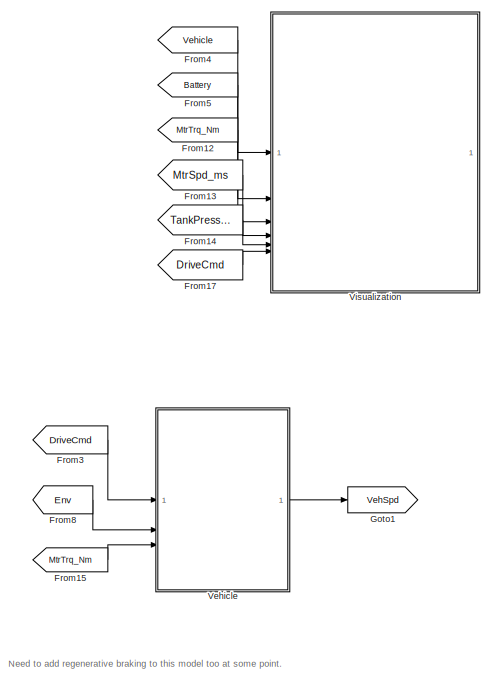
[diagram: root canvas - part 1/2, right side, full height]
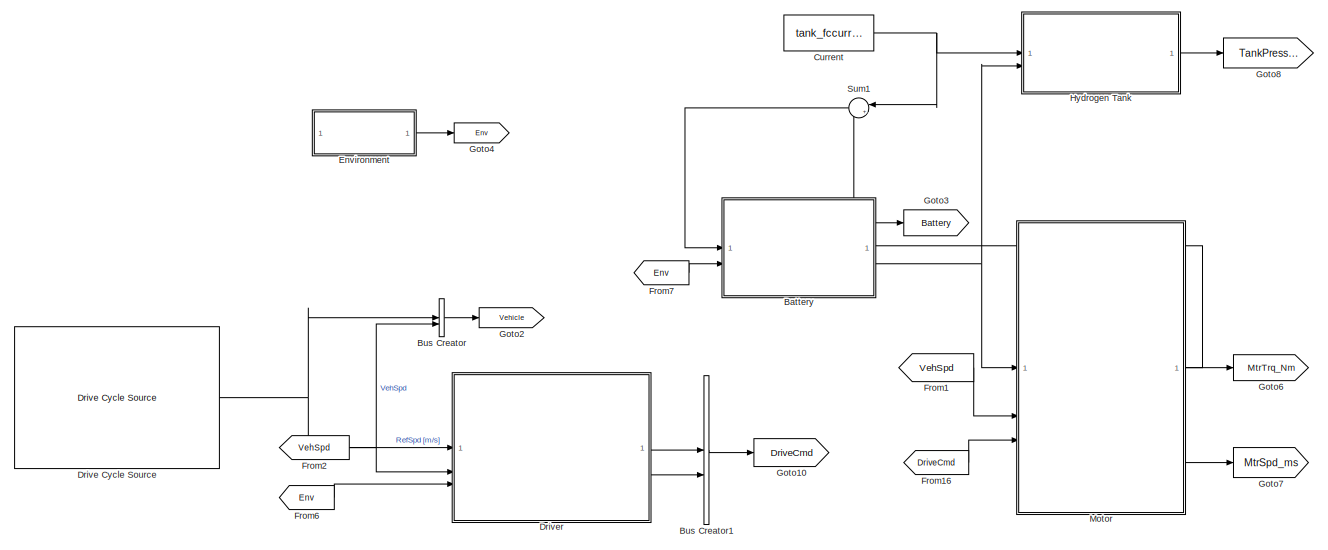
[diagram: root canvas - part 2/2, center side, full height]
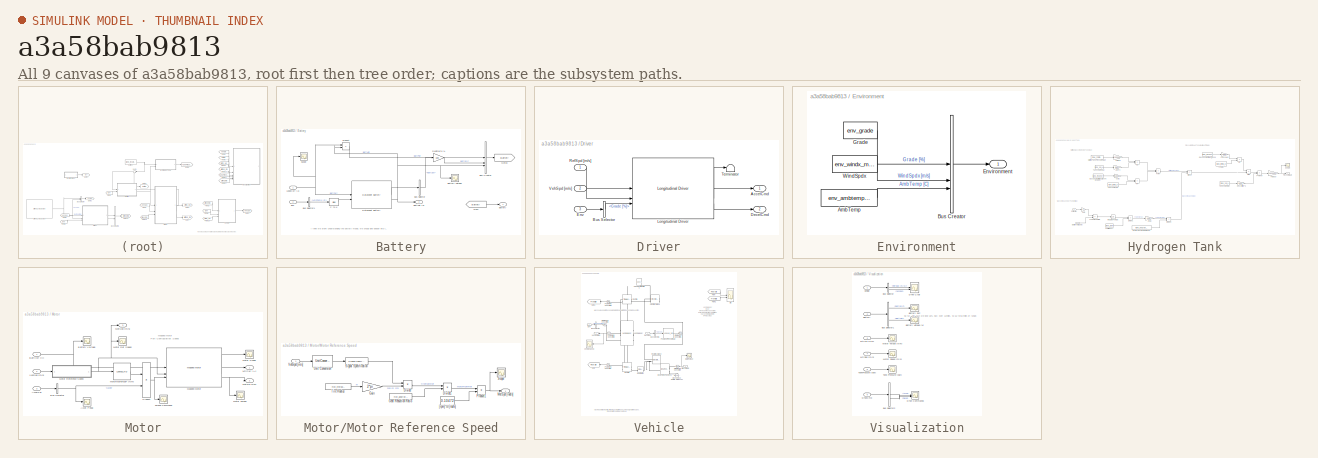
[diagram: thumbnail index - all 9 canvases of the model, root first then tree order]
MODEL slx_a3a58bab9813
KIND model
CONFIG AbsTol = auto
CONFIG EnableMultiTasking = off
CONFIG FixedStep = auto
CONFIG MaxStep = auto
CONFIG MinStep = auto
CONFIG RelTol = 1e-3
CONFIG SampleTimeConstraint = Unconstrained
CONFIG SolverName = VariableStepAuto
CONFIG StartTime = 0.0
CONFIG StopTime = 2474
WORKSPACE source: mxarray member
WORKSPACE N_P0 = 3
BLOCK [SubSystem] Battery
BLOCK [Outport] Battery/BattVolt [V]
  Port = 2
BLOCK [Outport] Battery/Battery
BLOCK [Scope] Battery/Battery Voltage
  Floating = off
  NumInputPorts = 1
  ScopeSpecificationString = Simulink.scopes.TimeScopeBlockCfg('CurrentConfiguration', extmgr.ConfigurationSet(extmgr.Configuration('Core','General UI',true),extmgr.Configuration('Core','Source UI',true),extmgr.Configuration('Sources','WiredSimulink',true,'DataLoggingVariableName','ScopeData10'),extmgr.Configuration('Visuals','Time Domain',true,'SerializedDisplays',{struct('MinYLimReal','42.42812','MaxYLimReal','51.67703','YL...<+1405ch>
BLOCK [BusCreator] Battery/Bus Creator
  DisplayOption = bar
  InheritFromInputs = on
  Inputs = 3
BLOCK [BusSelector] Battery/Bus Selector
  OutputSignals = BattSoc
BLOCK [BusSelector] Battery/Bus Selector1
  OutputSignals = AmbTemp [C]
BLOCK [Bias] Battery/C to K
  Bias = 273
  SaturateOnIntegerOverflow = off
BLOCK [Reference] Battery/Datasheet Battery  REF=autolibdatasheetbattery/Datasheet Battery
  SourceBlock = autolibdatasheetbattery/Datasheet Battery
  SourceType = Datasheet Battery
BLOCK [Gain] Battery/Decimal to %
  Gain = 100
BLOCK [Inport] Battery/Env
  Port = 2
BLOCK [From] Battery/From
  GotoTag = Battery
BLOCK [Goto] Battery/Goto3
  GotoTag = Battery
BLOCK [Inport] Battery/LoadCurr [A]
BLOCK [Product] Battery/Product
BLOCK [Scope] Battery/Scope
  Floating = off
  NumInputPorts = 1
  ScopeSpecificationString = Simulink.scopes.TimeScopeBlockCfg('CurrentConfiguration', extmgr.ConfigurationSet(extmgr.Configuration('Core','General UI',true),extmgr.Configuration('Core','Source UI',true),extmgr.Configuration('Sources','WiredSimulink',true,'DataLoggingVariableName','ScopeData2'),extmgr.Configuration('Visuals','Time Domain',true,'SerializedDisplays',{struct('MinYLimReal','-9.61679','MaxYLimReal','86.55107','YLa...<+1404ch>
BLOCK [BusCreator] Bus Creator
  DisplayOption = bar
  InheritFromInputs = on
  Inputs = 2
BLOCK [BusCreator] Bus Creator1
  DisplayOption = bar
  InheritFromInputs = on
  Inputs = 2
BLOCK [Constant] Current
  Value = tank_fccurr_A
BLOCK [Reference] Drive Cycle Source  REF=autolibshared/Drive Cycle Source
  AttributesFormatString = %<cycleVar> (%<tfinal>)
  LibrarySourceBlock = autolibscenario/Drive Cycle Source
  SourceBlock = autolibshared/Drive Cycle Source
  SourceType = Drive Cycle Source
BLOCK [SubSystem] Driver
BLOCK [Outport] Driver/AccelCmd
BLOCK [BusSelector] Driver/Bus Selector
  OutputSignals = Grade [%]
BLOCK [Outport] Driver/DecelCmd
  Port = 2
BLOCK [Inport] Driver/Env
  Port = 3
BLOCK [Reference] Driver/Longitudinal Driver  REF=autolibshared/Longitudinal Driver
  LibrarySourceBlock = autolibscenario/Longitudinal Driver
  SourceBlock = autolibshared/Longitudinal Driver
  SourceType = Longitudinal Driver
BLOCK [Inport] Driver/RefSpd [m//s]
BLOCK [Terminator] Driver/Terminator
BLOCK [Inport] Driver/VehSpd [m//s]
  Port = 2
BLOCK [SubSystem] Environment
BLOCK [Constant] Environment/AmbTemp
  Value = env_ambtemp_C
BLOCK [BusCreator] Environment/Bus Creator
  DisplayOption = bar
  InheritFromInputs = on
  Inputs = 3
BLOCK [Outport] Environment/Environment
BLOCK [Constant] Environment/Grade
  Value = env_grade
BLOCK [Constant] Environment/WindSpdx
  Value = env_windx_mps
BLOCK [From] From1
  GotoTag = VehSpd
BLOCK [From] From12
  GotoTag = MtrTrq_Nm
BLOCK [From] From13
  GotoTag = MtrSpd_ms
BLOCK [From] From14
  GotoTag = TankPressure
BLOCK [From] From15
  GotoTag = MtrTrq_Nm
BLOCK [From] From16
  GotoTag = DriveCmd
BLOCK [From] From17
  GotoTag = DriveCmd
BLOCK [From] From2
  GotoTag = VehSpd
BLOCK [From] From3
  GotoTag = DriveCmd
BLOCK [From] From4
  GotoTag = Vehicle
BLOCK [From] From5
  GotoTag = Battery
BLOCK [From] From6
  GotoTag = Env
BLOCK [From] From7
  GotoTag = Env
BLOCK [From] From8
  GotoTag = Env
BLOCK [Goto] Goto1
  GotoTag = VehSpd
BLOCK [Goto] Goto10
  GotoTag = DriveCmd
BLOCK [Goto] Goto2
  GotoTag = Vehicle
BLOCK [Goto] Goto3
  GotoTag = Battery
BLOCK [Goto] Goto4
  GotoTag = Env
BLOCK [Goto] Goto6
  GotoTag = MtrTrq_Nm
BLOCK [Goto] Goto7
  GotoTag = MtrSpd_ms
BLOCK [Goto] Goto8
  GotoTag = TankPressure
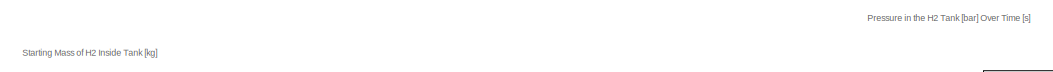
[diagram: Hydrogen Tank - part 1/3, top center region]
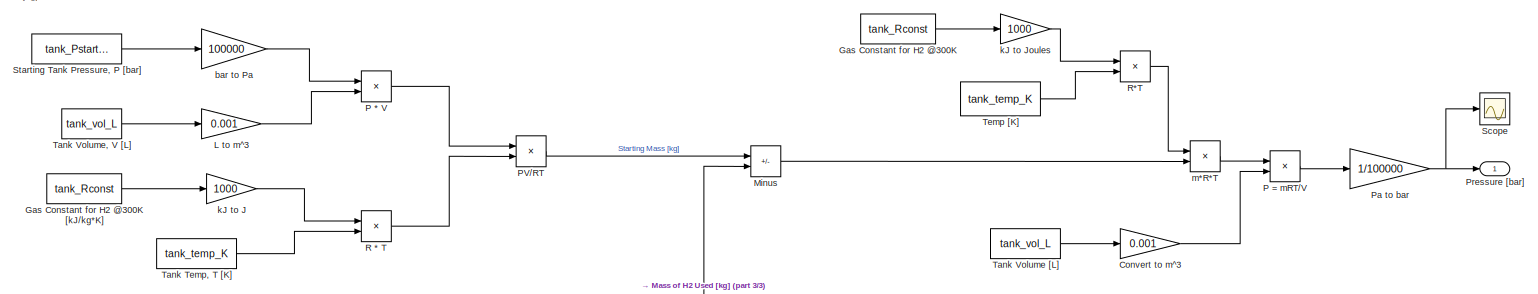
[diagram: Hydrogen Tank - part 2/3, full width, top band]
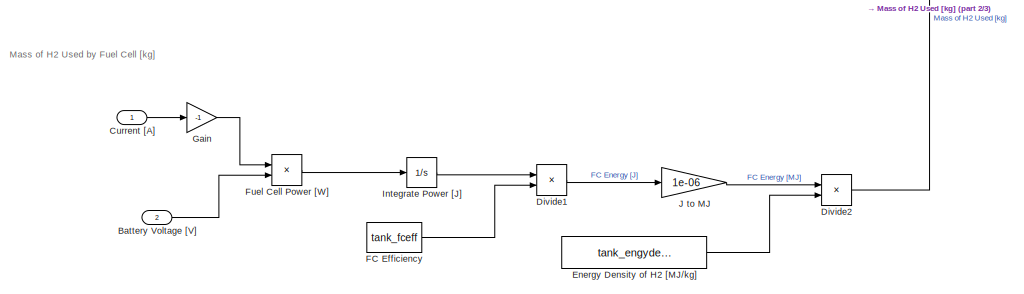
[diagram: Hydrogen Tank - part 3/3, bottom left region]
BLOCK [SubSystem] Hydrogen Tank
BLOCK [Inport] Hydrogen Tank/Battery Voltage [V]
  Port = 2
BLOCK [Gain] Hydrogen Tank/Convert to m^3
  Gain = 0.001
BLOCK [Inport] Hydrogen Tank/Current [A]
BLOCK [Product] Hydrogen Tank/Divide1
  Inputs = */
BLOCK [Product] Hydrogen Tank/Divide2
  Inputs = */
BLOCK [Constant] Hydrogen Tank/Energy Density of H2 [MJ//kg]
  Value = tank_engydensH2_MJpkg
BLOCK [Constant] Hydrogen Tank/FC Efficiency
  Value = tank_fceff
BLOCK [Product] Hydrogen Tank/Fuel Cell Power [W]
BLOCK [Gain] Hydrogen Tank/Gain
  Gain = -1
BLOCK [Constant] Hydrogen Tank/Gas Constant for H2 @300K
  Value = tank_Rconst
BLOCK [Constant] Hydrogen Tank/Gas Constant for H2 @300K [kJ//kg*K]
  Value = tank_Rconst
BLOCK [Integrator] Hydrogen Tank/Integrate Power [J]
BLOCK [Gain] Hydrogen Tank/J to MJ
  Gain = 1e-06
BLOCK [Gain] Hydrogen Tank/L to m^3
  Gain = 0.001
BLOCK [Sum] Hydrogen Tank/Minus
  IconShape = rectangular
  Inputs = +-
BLOCK [Product] Hydrogen Tank/P * V
BLOCK [Product] Hydrogen Tank/P = mRT//V
  Inputs = */
BLOCK [Product] Hydrogen Tank/PV//RT
  Inputs = */
BLOCK [Gain] Hydrogen Tank/Pa to bar
  Gain = 1/100000
BLOCK [Outport] Hydrogen Tank/Pressure [bar]
BLOCK [Product] Hydrogen Tank/R * T
BLOCK [Product] Hydrogen Tank/R*T
BLOCK [Scope] Hydrogen Tank/Scope
  Floating = off
  NumInputPorts = 1
  ScopeSpecificationString = Simulink.scopes.TimeScopeBlockCfg('CurrentConfiguration', extmgr.ConfigurationSet(extmgr.Configuration('Core','General UI',true),extmgr.Configuration('Core','Source UI',true),extmgr.Configuration('Sources','WiredSimulink',true,'DataLoggingVariableName','ScopeData1'),extmgr.Configuration('Visuals','Time Domain',true),extmgr.Configuration('Tools','Plot Navigation',true),extmgr.Configuration('Tools',...<+40ch>
BLOCK [Constant] Hydrogen Tank/Starting Tank Pressure, P [bar]
  Value = tank_Pstart_bar
BLOCK [Constant] Hydrogen Tank/Tank Temp, T [K]
  Value = tank_temp_K
BLOCK [Constant] Hydrogen Tank/Tank Volume [L]
  Value = tank_vol_L
BLOCK [Constant] Hydrogen Tank/Tank Volume, V [L]
  Value = tank_vol_L
BLOCK [Constant] Hydrogen Tank/Temp [K]
  Value = tank_temp_K
BLOCK [Gain] Hydrogen Tank/bar to Pa
  Gain = 100000
BLOCK [Gain] Hydrogen Tank/kJ to J
  Gain = 1000
BLOCK [Gain] Hydrogen Tank/kJ to Joules
  Gain = 1000
BLOCK [Product] Hydrogen Tank/m*R*T
BLOCK [SubSystem] Motor
BLOCK [Scope] Motor/Accel Pedal
  Floating = off
  NumInputPorts = 1
  ScopeSpecificationString = Simulink.scopes.TimeScopeBlockCfg('CurrentConfiguration', extmgr.ConfigurationSet(extmgr.Configuration('Core','General UI',true),extmgr.Configuration('Core','Source UI',true),extmgr.Configuration('Sources','WiredSimulink',true,'DataLoggingVariableName','ScopeData4'),extmgr.Configuration('Visuals','Time Domain',true,'SerializedDisplays',{struct('MinYLimReal','-0.07775','MaxYLimReal','0.69976','YLab...<+1367ch>
BLOCK [Inport] Motor/AccelPdl
  Port = 3
BLOCK [Inport] Motor/BattVolt [V]
BLOCK [Scope] Motor/Battery Voltage
  Floating = off
  NumInputPorts = 1
  ScopeSpecificationString = Simulink.scopes.TimeScopeBlockCfg('CurrentConfiguration', extmgr.ConfigurationSet(extmgr.Configuration('Core','General UI',true),extmgr.Configuration('Core','Source UI',true),extmgr.Configuration('Sources','WiredSimulink',true,'DataLoggingVariableName','ScopeData3'),extmgr.Configuration('Visuals','Time Domain',true,'SerializedDisplays',{struct('MinYLimReal','42.42812','MaxYLimReal','51.67703','YLa...<+1377ch>
BLOCK [BusSelector] Motor/Bus Selector
  OutputSignals = Accel
BLOCK [Reference] Motor/Mapped Motor  REF=autolibmappedmotor/Mapped Motor
  LibrarySourceBlock = autolibemachines/Mapped Motor
  SourceBlock = autolibmappedmotor/Mapped Motor
  SourceType = MappedMotor
BLOCK [Outport] Motor/MotSpd [m//s]
  Port = 3
BLOCK [Outport] Motor/MotTrq [Nm]
  Port = 2
BLOCK [Scope] Motor/Motor Ref Speed
  Floating = off
  NumInputPorts = 1
  ScopeSpecificationString = Simulink.scopes.TimeScopeBlockCfg('CurrentConfiguration', extmgr.ConfigurationSet(extmgr.Configuration('Core','General UI',true),extmgr.Configuration('Core','Source UI',true),extmgr.Configuration('Sources','WiredSimulink',true,'DataLoggingVariableName','ScopeData6'),extmgr.Configuration('Visuals','Time Domain',true,'SerializedDisplays',{struct('MinYLimReal','-3.20565','MaxYLimReal','28.85085','YLa...<+1417ch>
BLOCK [SubSystem] Motor/Motor Reference Speed
BLOCK [Product] Motor/Motor Reference Speed/Divide
  Inputs = */
BLOCK [Product] Motor/Motor Reference Speed/Divide1
  Inputs = */
BLOCK [Gain] Motor/Motor Reference Speed/Gain
  Gain = 2*pi
BLOCK [Constant] Motor/Motor Reference Speed/Gear Reduction Ratio
  Value = mot_gearratio
BLOCK [Outport] Motor/Motor Reference Speed/MotSpd [rad//s]
BLOCK [Product] Motor/Motor Reference Speed/Product1
BLOCK [Scope] Motor/Motor Reference Speed/Scope
  Floating = off
  NumInputPorts = 1
  ScopeSpecificationString = Simulink.scopes.TimeScopeBlockCfg('CurrentConfiguration', extmgr.ConfigurationSet(extmgr.Configuration('Core','General UI',true),extmgr.Configuration('Core','Source UI',true),extmgr.Configuration('Sources','WiredSimulink',true,'DataLoggingVariableName','ScopeData13'),extmgr.Configuration('Visuals','Time Domain',true,'SerializedDisplays',{struct('MinYLimReal','-3.15612','MaxYLimReal','28.40508','YL...<+1372ch>
BLOCK [SignalSpecification] Motor/Motor Reference Speed/Signal Specification
  Unit = m/min
BLOCK [Constant] Motor/Motor Reference Speed/Tire Radius
  Value = mot_tirerad_m
BLOCK [UnitConversion] Motor/Motor Reference Speed/Unit Conversion
BLOCK [Inport] Motor/Motor Reference Speed/VehSpd [m//s]
BLOCK [Constant] Motor/Motor Reference Speed/[rpm] to [rad//s]
  Value = 0.10472
BLOCK [Scope] Motor/Motor Scope
  Floating = off
  NumInputPorts = 1
  ScopeSpecificationString = Simulink.scopes.TimeScopeBlockCfg('CurrentConfiguration', extmgr.ConfigurationSet(extmgr.Configuration('Core','General UI',true),extmgr.Configuration('Core','Source UI',true),extmgr.Configuration('Sources','WiredSimulink',true,'DataLoggingVariableName','ScopeData1'),extmgr.Configuration('Visuals','Time Domain',true,'SerializedDisplays',{struct('MinYLimReal','-1778.25698','MaxYLimReal','2013.69503'...<+1455ch>
BLOCK [Scope] Motor/Motor Torque
  Floating = off
  NumInputPorts = 1
  ScopeSpecificationString = Simulink.scopes.TimeScopeBlockCfg('CurrentConfiguration', extmgr.ConfigurationSet(extmgr.Configuration('Core','General UI',true),extmgr.Configuration('Core','Source UI',true),extmgr.Configuration('Sources','WiredSimulink',true,'DataLoggingVariableName','ScopeData8'),extmgr.Configuration('Visuals','Time Domain',true,'SerializedDisplays',{struct('MinYLimReal','-6.59749','MaxYLimReal','59.37697','YLa...<+1446ch>
BLOCK [Lookup_n-D] Motor/MotorMaxTorque* [Nm]
  BreakpointsForDimension1 = mot_rotspd_radps
  InputPortMap = u0
  InternalRulePriority = Speed
  NumberOfTableDimensions = 1
  RndMeth = Simplest
  Table = mot_maxtrq_Nm
BLOCK [Outport] Motor/MtrCurr [A]
BLOCK [Product] Motor/Product
BLOCK [Scope] Motor/Torque Command
  Floating = off
  NumInputPorts = 1
  ScopeSpecificationString = Simulink.scopes.TimeScopeBlockCfg('CurrentConfiguration', extmgr.ConfigurationSet(extmgr.Configuration('Core','General UI',true),extmgr.Configuration('Core','Source UI',true),extmgr.Configuration('Sources','WiredSimulink',true,'DataLoggingVariableName','ScopeData5'),extmgr.Configuration('Visuals','Time Domain',true,'SerializedDisplays',{struct('MinYLimReal','-5.20212','MaxYLimReal','46.8191','YLab...<+1366ch>
BLOCK [Inport] Motor/VehSpd [m//s]
  Port = 2
BLOCK [Sum] Sum1
  Inputs = |++
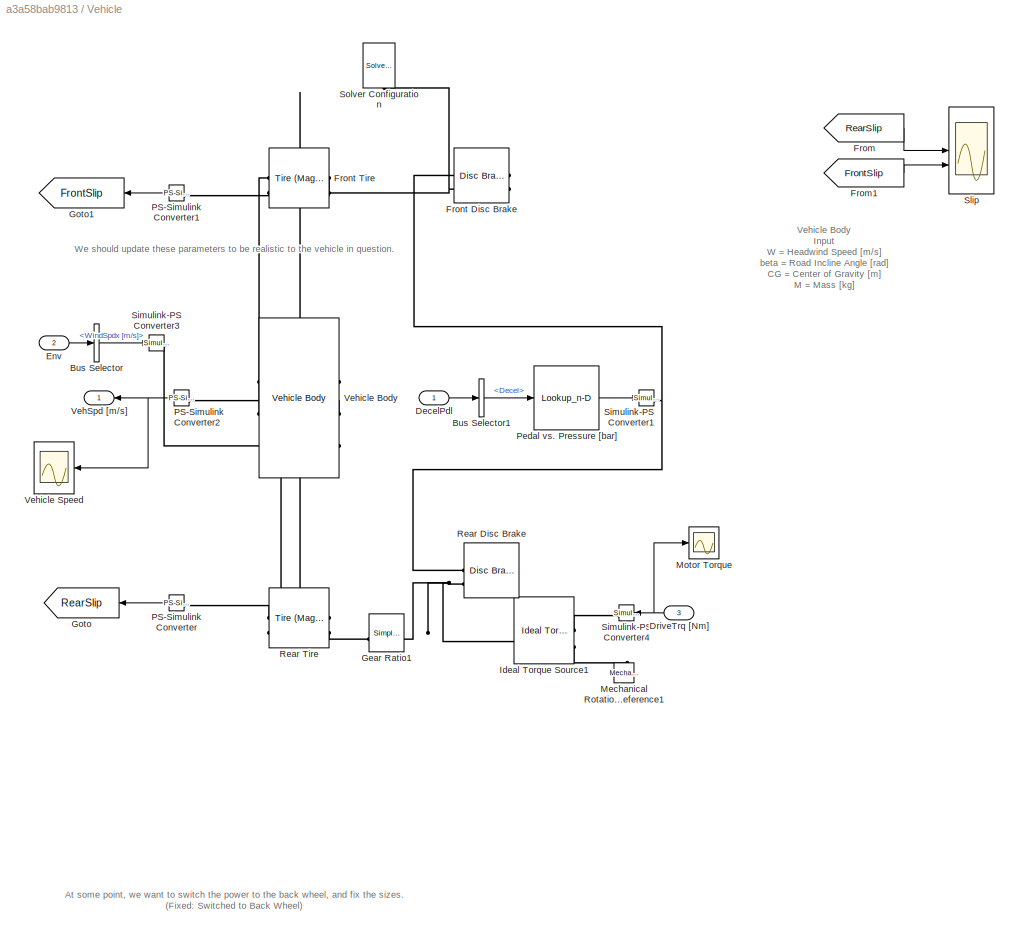
BLOCK [SubSystem] Vehicle
BLOCK [BusSelector] Vehicle/Bus Selector
  OutputSignals = WindSpdx [m/s]
BLOCK [BusSelector] Vehicle/Bus Selector1
  OutputSignals = Decel
BLOCK [Inport] Vehicle/DecelPdl
BLOCK [Inport] Vehicle/DriveTrq [Nm]
  Port = 3
BLOCK [Inport] Vehicle/Env
  Port = 2
BLOCK [From] Vehicle/From
  GotoTag = RearSlip
BLOCK [From] Vehicle/From1
  GotoTag = FrontSlip
BLOCK [Reference] Vehicle/Front Disc Brake  REF=sdl_lib/Brakes & Detents/Rotational/Disc Brake
  SourceBlock = sdl_lib/Brakes & Detents/Rotational/Disc Brake
  SourceType = Disc Brake
BLOCK [Reference] Vehicle/Front Tire  REF=sdl_lib/Tires & Vehicles/Tire (Magic Formula)
  NameLocation = top
  SourceBlock = sdl_lib/Tires & Vehicles/Tire (Magic Formula)
  SourceType = Tire (Magic Formula)
BLOCK [Reference] Vehicle/Gear Ratio1  REF=sdl_lib/Gears/Simple Gear
  SourceBlock = sdl_lib/Gears/Simple Gear
  SourceType = Simple Gear
BLOCK [Goto] Vehicle/Goto
  GotoTag = RearSlip
BLOCK [Goto] Vehicle/Goto1
  GotoTag = FrontSlip
BLOCK [Reference] Vehicle/Ideal Torque Source1  REF=fl_lib/Mechanical/Mechanical Sources/Ideal Torque Source
  SourceBlock = fl_lib/Mechanical/Mechanical Sources/Ideal Torque Source
  SourceType = Ideal Torque Source
BLOCK [Reference] Vehicle/Mechanical Rotational Reference1  REF=fl_lib/Mechanical/Rotational Elements/Mechanical
Rotational Reference
  NameLocation = right
  SourceBlock = fl_lib/Mechanical/Rotational Elements/Mechanical\nRotational Reference
  SourceType = Mechanical\nRotational Reference
BLOCK [Scope] Vehicle/Motor Torque
  Floating = off
  NumInputPorts = 1
  ScopeSpecificationString = Simulink.scopes.TimeScopeBlockCfg('CurrentConfiguration', extmgr.ConfigurationSet(extmgr.Configuration('Core','General UI',true),extmgr.Configuration('Core','Source UI',true),extmgr.Configuration('Sources','WiredSimulink',true,'DataLoggingVariableName','ScopeData1'),extmgr.Configuration('Visuals','Time Domain',true,'SerializedDisplays',{struct('MinYLimReal','-59.34355','MaxYLimReal','534.05016','Y...<+1377ch>
BLOCK [Reference] Vehicle/PS-Simulink Converter  REF=nesl_utility/PS-Simulink
Converter
  SourceBlock = nesl_utility/PS-Simulink\nConverter
  SourceType = PS-Simulink\nConverter
BLOCK [Reference] Vehicle/PS-Simulink Converter1  REF=nesl_utility/PS-Simulink
Converter
  SourceBlock = nesl_utility/PS-Simulink\nConverter
  SourceType = PS-Simulink\nConverter
BLOCK [Reference] Vehicle/PS-Simulink Converter2  REF=nesl_utility/PS-Simulink
Converter
  SourceBlock = nesl_utility/PS-Simulink\nConverter
  SourceType = PS-Simulink\nConverter
BLOCK [Lookup_n-D] Vehicle/Pedal vs. Pressure [bar]
  BreakpointsForDimension1 = [-5:5]
  InputPortMap = u0
  InternalRulePriority = Speed
  NumberOfTableDimensions = 1
  RndMeth = Simplest
  Table = tanh([-5:5])
BLOCK [Reference] Vehicle/Rear Disc Brake  REF=sdl_lib/Brakes & Detents/Rotational/Disc Brake
  NameLocation = top
  SourceBlock = sdl_lib/Brakes & Detents/Rotational/Disc Brake
  SourceType = Disc Brake
BLOCK [Reference] Vehicle/Rear Tire  REF=sdl_lib/Tires & Vehicles/Tire (Magic Formula)
  SourceBlock = sdl_lib/Tires & Vehicles/Tire (Magic Formula)
  SourceType = Tire (Magic Formula)
BLOCK [Reference] Vehicle/Simulink-PS Converter1  REF=nesl_utility/Simulink-PS
Converter
  SourceBlock = nesl_utility/Simulink-PS\nConverter
  SourceType = Simulink-PS\nConverter
BLOCK [Reference] Vehicle/Simulink-PS Converter3  REF=nesl_utility/Simulink-PS
Converter
  SourceBlock = nesl_utility/Simulink-PS\nConverter
  SourceType = Simulink-PS\nConverter
BLOCK [Reference] Vehicle/Simulink-PS Converter4  REF=nesl_utility/Simulink-PS
Converter
  SourceBlock = nesl_utility/Simulink-PS\nConverter
  SourceType = Simulink-PS\nConverter
BLOCK [Scope] Vehicle/Slip
  Floating = off
  NumInputPorts = 2
  ScopeSpecificationString = Simulink.scopes.TimeScopeBlockCfg('CurrentConfiguration', extmgr.ConfigurationSet(extmgr.Configuration('Core','General UI',true),extmgr.Configuration('Core','Source UI',true),extmgr.Configuration('Sources','WiredSimulink',true,'DataLoggingVariableName','ScopeData1'),extmgr.Configuration('Visuals','Time Domain',true,'SerializedDisplays',{struct('MinYLimReal','-0.00488','MaxYLimReal','0.01789','YLab...<+1432ch>
BLOCK [Reference] Vehicle/Solver Configuration  REF=nesl_utility/Solver
Configuration
  NameLocation = left
  SourceBlock = nesl_utility/Solver\nConfiguration
  SourceType = Solver\nConfiguration
BLOCK [Outport] Vehicle/VehSpd [m//s]
BLOCK [Reference] Vehicle/Vehicle Body  REF=sdl_lib/Tires & Vehicles/Vehicle Body
  SourceBlock = sdl_lib/Tires & Vehicles/Vehicle Body
  SourceType = Vehicle Body
BLOCK [Scope] Vehicle/Vehicle Speed
  Floating = off
  NumInputPorts = 1
  ScopeSpecificationString = Simulink.scopes.TimeScopeBlockCfg('CurrentConfiguration', extmgr.ConfigurationSet(extmgr.Configuration('Core','General UI',true),extmgr.Configuration('Core','Source UI',true),extmgr.Configuration('Sources','WiredSimulink',true,'DataLoggingVariableName','ScopeData7'),extmgr.Configuration('Visuals','Time Domain',true,'SerializedDisplays',{struct('MinYLimReal','-3.13988','MaxYLimReal','28.25896','YLa...<+1385ch>
BLOCK [SubSystem] Visualization
BLOCK [Inport] Visualization/Battery
  Port = 2
BLOCK [Scope] Visualization/Battery SoC
  Floating = off
  NumInputPorts = 1
  ScopeSpecificationString = Simulink.scopes.TimeScopeBlockCfg('CurrentConfiguration', extmgr.ConfigurationSet(extmgr.Configuration('Core','General UI',true),extmgr.Configuration('Core','Source UI',true),extmgr.Configuration('Sources','WiredSimulink',true,'DataLoggingVariableName','ScopeData2'),extmgr.Configuration('Visuals','Time Domain',true,'SerializedDisplays',{struct('MinYLimReal','99.67001','MaxYLimReal','100.03667','YL...<+1449ch>
BLOCK [Scope] Visualization/Battery Voltage [V]
  Floating = off
  NumInputPorts = 1
  ScopeSpecificationString = Simulink.scopes.TimeScopeBlockCfg('CurrentConfiguration', extmgr.ConfigurationSet(extmgr.Configuration('Core','General UI',true),extmgr.Configuration('Core','Source UI',true),extmgr.Configuration('Sources','WiredSimulink',true,'DataLoggingVariableName','ScopeData4'),extmgr.Configuration('Visuals','Time Domain',true,'SerializedDisplays',{struct('MinYLimReal','46.98372','MaxYLimReal','51.17961','YLa...<+1408ch>
BLOCK [BusSelector] Visualization/Bus Selector
  OutputSignals = RefSpd [m/s],VehSpd
BLOCK [BusSelector] Visualization/Bus Selector1
  OutputSignals = BattSOC,BattVolt
BLOCK [BusSelector] Visualization/Bus Selector2
  OutputSignals = Accel,Decel
BLOCK [Scope] Visualization/Drive Commands
  Floating = off
  NumInputPorts = 2
  ScopeSpecificationString = Simulink.scopes.TimeScopeBlockCfg('CurrentConfiguration', extmgr.ConfigurationSet(extmgr.Configuration('Core','General UI',true),extmgr.Configuration('Core','Source UI',true),extmgr.Configuration('Sources','WiredSimulink',true,'DataLoggingVariableName','ScopeData3'),extmgr.Configuration('Visuals','Time Domain',true,'SerializedDisplays',{struct('MinYLimReal','-0.125','MaxYLimReal','1.125','YLabelRe...<+1362ch>
BLOCK [Scope] Visualization/Drive Cycle
  Floating = off
  NumInputPorts = 2
  ScopeSpecificationString = Simulink.scopes.TimeScopeBlockCfg('CurrentConfiguration', extmgr.ConfigurationSet(extmgr.Configuration('Core','General UI',true),extmgr.Configuration('Core','Source UI',true),extmgr.Configuration('Sources','WiredSimulink',true),extmgr.Configuration('Visuals','Time Domain',true,'SerializedDisplays',{struct('MinYLimReal','-3.18','MaxYLimReal','28.61998','YLabelReal','','MinYLimMag','0.00000','MaxYLi...<+1370ch>
BLOCK [Inport] Visualization/DriveCmd
  Port = 6
BLOCK [Scope] Visualization/Motor Speed [m//s]
  Floating = off
  NumInputPorts = 1
  ScopeSpecificationString = Simulink.scopes.TimeScopeBlockCfg('CurrentConfiguration', extmgr.ConfigurationSet(extmgr.Configuration('Core','General UI',true),extmgr.Configuration('Core','Source UI',true),extmgr.Configuration('Sources','WiredSimulink',true,'DataLoggingVariableName','ScopeData2'),extmgr.Configuration('Visuals','Time Domain',true),extmgr.Configuration('Tools','Plot Navigation',true),extmgr.Configuration('Tools',...<+40ch>
BLOCK [Scope] Visualization/Motor Torque [Nm]
  Floating = off
  NumInputPorts = 1
  ScopeSpecificationString = Simulink.scopes.TimeScopeBlockCfg('CurrentConfiguration', extmgr.ConfigurationSet(extmgr.Configuration('Core','General UI',true),extmgr.Configuration('Core','Source UI',true),extmgr.Configuration('Sources','WiredSimulink',true,'DataLoggingVariableName','ScopeData1'),extmgr.Configuration('Visuals','Time Domain',true),extmgr.Configuration('Tools','Plot Navigation',true),extmgr.Configuration('Tools',...<+40ch>
BLOCK [Inport] Visualization/MtrSpd [m//s]
  Port = 4
BLOCK [Inport] Visualization/MtrTrq [Nm]
  Port = 3
BLOCK [Scope] Visualization/Tank Pressure [bar]
  Floating = off
  NumInputPorts = 1
  ScopeSpecificationString = Simulink.scopes.TimeScopeBlockCfg('CurrentConfiguration', extmgr.ConfigurationSet(extmgr.Configuration('Core','General UI',true),extmgr.Configuration('Core','Source UI',true),extmgr.Configuration('Sources','WiredSimulink',true,'DataLoggingVariableName','ScopeData2'),extmgr.Configuration('Visuals','Time Domain',true,'SerializedDisplays',{struct('MinYLimReal','274.88196','MaxYLimReal','358.34645','Y...<+1389ch>
BLOCK [Inport] Visualization/TankPressure [bar]
  Port = 5
BLOCK [Inport] Visualization/Vehicle
ANNOTATION (root): Need to add regenerative braking to this model too at some point.
ANNOTATION Battery: I think we aren't understanding the battery model, we should dive deeper into it and then come up with the correct 'tabulated values'
ANNOTATION Hydrogen Tank: Mass of H2 Used by Fuel Cell [kg]
ANNOTATION Hydrogen Tank: Pressure in the H2 Tank [bar] Over Time [s]
ANNOTATION Hydrogen Tank: Starting Mass of H2 Inside Tank [kg]
ANNOTATION Motor: Mapped Motor Port Configuration: Speed
ANNOTATION Vehicle: Vehicle Body Input W = Headwind Speed [m/s] beta = Road Incline Angle [rad] CG = Center of Gravity [m] M = Mass [kg] J = External Moment of Inertia [kg*m^2] Output V = Longitudinal Velocity [m/s] NF = Front Axle Normal Force [N] NR = Rear Axle Normal Force [N] H = Horizontal Motional Mechanical Translation Front Tire N = Normal Force [N] M = Magic Formula Coefficients S = Slip A = Axle H = Hub Mec...<+263ch>
ANNOTATION Vehicle: At some point, we want to switch the power to the back wheel, and fix the sizes. (Fixed: Switched to Back Wheel)
ANNOTATION Vehicle: We should update these parameters to be realistic to the vehicle in question.
ANNOTATION Visualization: So far, sim says we lose 18% SoC over 11miles, so 62 total miles of range.
LINE Battery/Bus Creator:1 -> Battery/Goto3:1
LINE Battery/Bus Selector1:1 -> Battery/C to K:1
LINE Battery/Bus Selector:1 -> Battery/Decimal to %:1
LINE Battery/C to K:1 -> Battery/Datasheet Battery:2
LINE Battery/Datasheet Battery:1 -> Battery/Bus Selector:1
NET Battery/Datasheet Battery:2 -> Battery/BattVolt [V]:1, Battery/Battery Voltage:1, Battery/Bus Creator:3, Battery/Product:2
LINE Battery/Decimal to %:1 -> Battery/Bus Creator:2
LINE Battery/Env:1 -> Battery/Bus Selector1:1
LINE Battery/From:1 -> Battery/Battery:1
NET Battery/LoadCurr [A]:1 -> Battery/Datasheet Battery:1, Battery/Product:1, Battery/Scope:1
LINE Battery/Product:1 -> Battery/Bus Creator:1
LINE Battery:1 -> Goto3:1
NET Battery:2 -> Hydrogen Tank:2, Motor:1
LINE Bus Creator1:1 -> Goto10:1
LINE Bus Creator:1 -> Goto2:1
NET Current:1 -> Hydrogen Tank:1, Sum1:1
NET Drive Cycle Source:1 -> Bus Creator:1, Driver:1
LINE Driver/Bus Selector:1 -> Driver/Longitudinal Driver:3
LINE Driver/Env:1 -> Driver/Bus Selector:1
LINE Driver/Longitudinal Driver:1 -> Driver/Terminator:1
LINE Driver/Longitudinal Driver:2 -> Driver/AccelCmd:1
LINE Driver/Longitudinal Driver:3 -> Driver/DecelCmd:1
LINE Driver/RefSpd [m//s]:1 -> Driver/Longitudinal Driver:1
LINE Driver/VehSpd [m//s]:1 -> Driver/Longitudinal Driver:2
LINE Driver:1 -> Bus Creator1:1
LINE Driver:2 -> Bus Creator1:2
LINE Environment/AmbTemp:1 -> Environment/Bus Creator:3
LINE Environment/Bus Creator:1 -> Environment/Environment:1
LINE Environment/Grade:1 -> Environment/Bus Creator:1
LINE Environment/WindSpdx:1 -> Environment/Bus Creator:2
LINE Environment:1 -> Goto4:1
LINE From12:1 -> Visualization:3
LINE From13:1 -> Visualization:4
LINE From14:1 -> Visualization:5
LINE From15:1 -> Vehicle:3
LINE From16:1 -> Motor:3
LINE From17:1 -> Visualization:6
LINE From1:1 -> Motor:2
NET From2:1 -> Bus Creator:2, Driver:2
LINE From3:1 -> Vehicle:1
LINE From4:1 -> Visualization:1
LINE From5:1 -> Visualization:2
LINE From6:1 -> Driver:3
LINE From7:1 -> Battery:2
LINE From8:1 -> Vehicle:2
LINE Hydrogen Tank/Battery Voltage [V]:1 -> Hydrogen Tank/Fuel Cell Power [W]:2
LINE Hydrogen Tank/Convert to m^3:1 -> Hydrogen Tank/P = mRT//V:2
LINE Hydrogen Tank/Current [A]:1 -> Hydrogen Tank/Gain:1
LINE Hydrogen Tank/Divide1:1 -> Hydrogen Tank/J to MJ:1
LINE Hydrogen Tank/Divide2:1 -> Hydrogen Tank/Minus:2
LINE Hydrogen Tank/Energy Density of H2 [MJ//kg]:1 -> Hydrogen Tank/Divide2:2
LINE Hydrogen Tank/FC Efficiency:1 -> Hydrogen Tank/Divide1:2
LINE Hydrogen Tank/Fuel Cell Power [W]:1 -> Hydrogen Tank/Integrate Power [J]:1
LINE Hydrogen Tank/Gain:1 -> Hydrogen Tank/Fuel Cell Power [W]:1
LINE Hydrogen Tank/Gas Constant for H2 @300K [kJ//kg*K]:1 -> Hydrogen Tank/kJ to J:1
LINE Hydrogen Tank/Gas Constant for H2 @300K:1 -> Hydrogen Tank/kJ to Joules:1
LINE Hydrogen Tank/Integrate Power [J]:1 -> Hydrogen Tank/Divide1:1
LINE Hydrogen Tank/J to MJ:1 -> Hydrogen Tank/Divide2:1
LINE Hydrogen Tank/L to m^3:1 -> Hydrogen Tank/P * V:2
LINE Hydrogen Tank/Minus:1 -> Hydrogen Tank/m*R*T:2
LINE Hydrogen Tank/P * V:1 -> Hydrogen Tank/PV//RT:1
LINE Hydrogen Tank/P = mRT//V:1 -> Hydrogen Tank/Pa to bar:1
LINE Hydrogen Tank/PV//RT:1 -> Hydrogen Tank/Minus:1
NET Hydrogen Tank/Pa to bar:1 -> Hydrogen Tank/Pressure [bar]:1, Hydrogen Tank/Scope:1
LINE Hydrogen Tank/R * T:1 -> Hydrogen Tank/PV//RT:2
LINE Hydrogen Tank/R*T:1 -> Hydrogen Tank/m*R*T:1
LINE Hydrogen Tank/Starting Tank Pressure, P [bar]:1 -> Hydrogen Tank/bar to Pa:1
LINE Hydrogen Tank/Tank Temp, T [K]:1 -> Hydrogen Tank/R * T:2
LINE Hydrogen Tank/Tank Volume [L]:1 -> Hydrogen Tank/Convert to m^3:1
LINE Hydrogen Tank/Tank Volume, V [L]:1 -> Hydrogen Tank/L to m^3:1
LINE Hydrogen Tank/Temp [K]:1 -> Hydrogen Tank/R*T:2
LINE Hydrogen Tank/bar to Pa:1 -> Hydrogen Tank/P * V:1
LINE Hydrogen Tank/kJ to J:1 -> Hydrogen Tank/R * T:1
LINE Hydrogen Tank/kJ to Joules:1 -> Hydrogen Tank/R*T:1
LINE Hydrogen Tank/m*R*T:1 -> Hydrogen Tank/P = mRT//V:1
LINE Hydrogen Tank:1 -> Goto8:1
LINE Motor/AccelPdl:1 -> Motor/Bus Selector:1
NET Motor/BattVolt [V]:1 -> Motor/Battery Voltage:1, Motor/Mapped Motor:1
NET Motor/Bus Selector:1 -> Motor/Accel Pedal:1, Motor/Product:2
LINE Motor/Mapped Motor:1 -> Motor/Motor Scope:1
LINE Motor/Mapped Motor:2 -> Motor/MtrCurr [A]:1
NET Motor/Mapped Motor:3 -> Motor/MotTrq [Nm]:1, Motor/Motor Torque:1
LINE Motor/Motor Reference Speed/Divide1:1 -> Motor/Motor Reference Speed/Product1:1
LINE Motor/Motor Reference Speed/Divide:1 -> Motor/Motor Reference Speed/Divide1:1
LINE Motor/Motor Reference Speed/Gain:1 -> Motor/Motor Reference Speed/Divide:2
LINE Motor/Motor Reference Speed/Gear Reduction Ratio:1 -> Motor/Motor Reference Speed/Divide1:2
NET Motor/Motor Reference Speed/Product1:1 -> Motor/Motor Reference Speed/MotSpd [rad//s]:1, Motor/Motor Reference Speed/Scope:1
LINE Motor/Motor Reference Speed/Signal Specification:1 -> Motor/Motor Reference Speed/Divide:1
LINE Motor/Motor Reference Speed/Tire Radius:1 -> Motor/Motor Reference Speed/Gain:1
LINE Motor/Motor Reference Speed/Unit Conversion:1 -> Motor/Motor Reference Speed/Signal Specification:1
LINE Motor/Motor Reference Speed/VehSpd [m//s]:1 -> Motor/Motor Reference Speed/Unit Conversion:1
LINE Motor/Motor Reference Speed/[rpm] to [rad//s]:1 -> Motor/Motor Reference Speed/Product1:2
NET Motor/Motor Reference Speed:1 -> Motor/Mapped Motor:2, Motor/MotSpd [m//s]:1, Motor/Motor Ref Speed:1, Motor/MotorMaxTorque* [Nm]:1
LINE Motor/MotorMaxTorque* [Nm]:1 -> Motor/Product:1
NET Motor/Product:1 -> Motor/Mapped Motor:3, Motor/Torque Command:1
LINE Motor/VehSpd [m//s]:1 -> Motor/Motor Reference Speed:1
LINE Motor:1 -> Sum1:2
LINE Motor:2 -> Goto6:1
LINE Motor:3 -> Goto7:1
LINE Sum1:1 -> Battery:1
LINE Vehicle/Bus Selector1:1 -> Vehicle/Pedal vs. Pressure [bar]:1
LINE Vehicle/Bus Selector:1 -> Vehicle/Simulink-PS Converter3:1
LINE Vehicle/DecelPdl:1 -> Vehicle/Bus Selector1:1
NET Vehicle/DriveTrq [Nm]:1 -> Vehicle/Motor Torque:1, Vehicle/Simulink-PS Converter4:1
LINE Vehicle/Env:1 -> Vehicle/Bus Selector:1
LINE Vehicle/From1:1 -> Vehicle/Slip:2
LINE Vehicle/From:1 -> Vehicle/Slip:1
LINE Vehicle/PS-Simulink Converter1:1 -> Vehicle/Goto1:1
NET Vehicle/PS-Simulink Converter2:1 -> Vehicle/VehSpd [m//s]:1, Vehicle/Vehicle Speed:1
LINE Vehicle/PS-Simulink Converter:1 -> Vehicle/Goto:1
LINE Vehicle/Pedal vs. Pressure [bar]:1 -> Vehicle/Simulink-PS Converter1:1
LINE Vehicle:1 -> Goto1:1
LINE Visualization/Battery:1 -> Visualization/Bus Selector1:1
LINE Visualization/Bus Selector1:1 -> Visualization/Battery SoC:1
LINE Visualization/Bus Selector1:2 -> Visualization/Battery Voltage [V]:1
LINE Visualization/Bus Selector2:1 -> Visualization/Drive Commands:1
LINE Visualization/Bus Selector2:2 -> Visualization/Drive Commands:2
LINE Visualization/Bus Selector:1 -> Visualization/Drive Cycle:1
LINE Visualization/Bus Selector:2 -> Visualization/Drive Cycle:2
LINE Visualization/DriveCmd:1 -> Visualization/Bus Selector2:1
LINE Visualization/MtrSpd [m//s]:1 -> Visualization/Motor Speed [m//s]:1
LINE Visualization/MtrTrq [Nm]:1 -> Visualization/Motor Torque [Nm]:1
LINE Visualization/TankPressure [bar]:1 -> Visualization/Tank Pressure [bar]:1
LINE Visualization/Vehicle:1 -> Visualization/Bus Selector:1
PNET net1: Vehicle/Front Disc Brake:LConn1 -- Vehicle/Rear Disc Brake:LConn1 -- Vehicle/Simulink-PS Converter1:RConn1
PNET net2: Vehicle/Front Disc Brake:LConn2 -- Vehicle/Front Tire:LConn2 -- Vehicle/Solver Configuration:RConn1
PLINE Vehicle/Front Tire:LConn1 -- Vehicle/Vehicle Body:RConn2
PLINE Vehicle/Front Tire:RConn1 -- Vehicle/PS-Simulink Converter1:LConn1
PNET net3: Vehicle/Front Tire:RConn2 -- Vehicle/Rear Tire:RConn2 -- Vehicle/Vehicle Body:LConn1
PLINE Vehicle/Gear Ratio1:LConn1 -- Vehicle/Rear Tire:LConn2
PNET net4: Vehicle/Gear Ratio1:RConn1 -- Vehicle/Ideal Torque Source1:LConn1 -- Vehicle/Rear Disc Brake:LConn2
PLINE Vehicle/Ideal Torque Source1:RConn1 -- Vehicle/Simulink-PS Converter4:RConn1
PLINE Vehicle/Ideal Torque Source1:RConn2 -- Vehicle/Mechanical Rotational Reference1:LConn1
PLINE Vehicle/PS-Simulink Converter2:LConn1 -- Vehicle/Vehicle Body:LConn2
PLINE Vehicle/PS-Simulink Converter:LConn1 -- Vehicle/Rear Tire:RConn1
PLINE Vehicle/Rear Tire:LConn1 -- Vehicle/Vehicle Body:RConn1
PLINE Vehicle/Simulink-PS Converter3:RConn1 -- Vehicle/Vehicle Body:LConn3
note: NET lines group one-source signal fan-out (src -> all destinations, sorted); 1:1 wires keep LINE; PNET lines group multi-terminal physical nets as a canonical sorted terminal list (undirected conserving connections); 2-terminal nets keep the pairwise PLINE form
